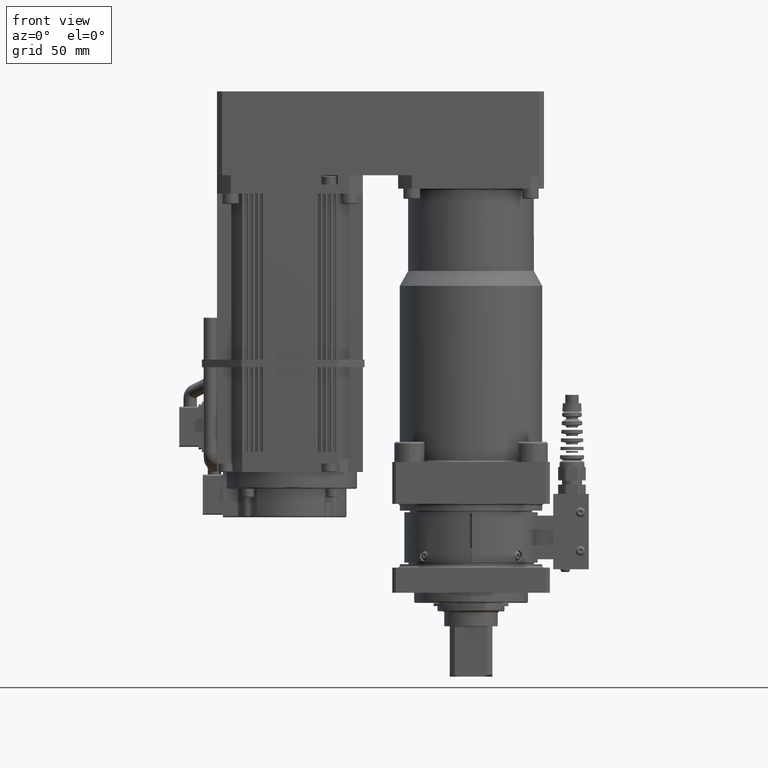
[diagram: clean part render]
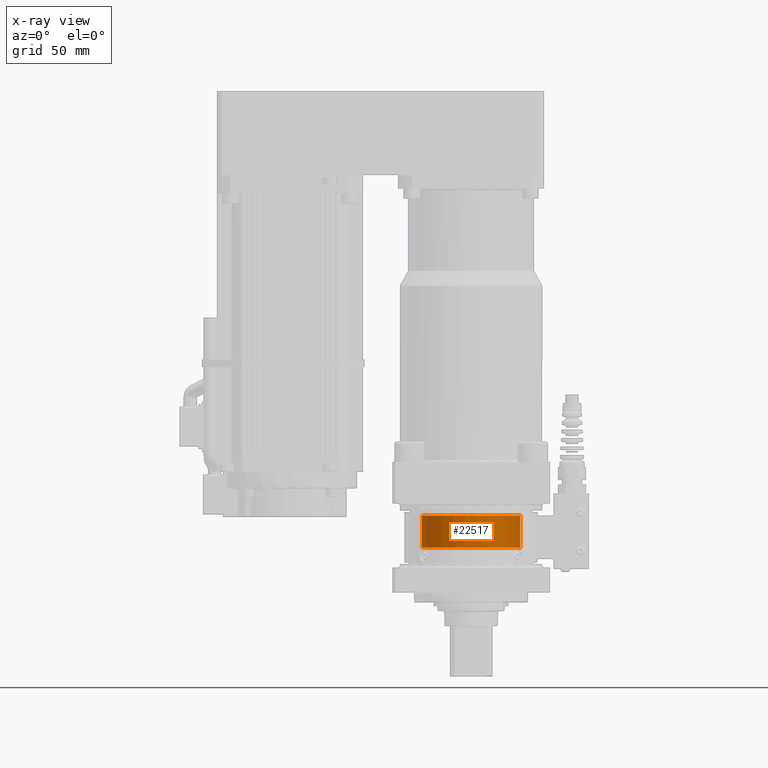
[diagram: x-ray — body ghosted, one internal face saturated and labeled with its STEP entity id]
A machine part, front view, then the same camera in x-ray: the body is ghosted and one INTERNAL B-rep face — a face not visible from any outside direction — is saturated and labeled: STEP entity #22517.
In plain terms, the highlighted cylindrical surface (bore or boss wall) has radius 29.374 mm, axis along (0, 0, -1).
Its self-contained STEP definition (entity closure, byte-faithful):
#3059=LINE('',#37317,#5033);
#5033=VECTOR('',#30406,29.374);
#5461=CYLINDRICAL_SURFACE('',#24571,29.374);
#6552=FACE_OUTER_BOUND('',#7868,.T.);
#7868=EDGE_LOOP('',(#19624,#19625,#19626,#19627,#19628,#19629));
#8854=CIRCLE('',#24569,29.374);
#8855=CIRCLE('',#24570,29.374);
#8856=CIRCLE('',#24572,29.374);
#8857=CIRCLE('',#24573,29.374);
#10776=VERTEX_POINT('',#37308);
#10777=VERTEX_POINT('',#37310);
#10778=VERTEX_POINT('',#37314);
#10779=VERTEX_POINT('',#37315);
#13771=EDGE_CURVE('',#10776,#10777,#8854,.T.);
#13772=EDGE_CURVE('',#10777,#10776,#8855,.T.);
#13773=EDGE_CURVE('',#10778,#10779,#8856,.T.);
#13774=EDGE_CURVE('',#10778,#10777,#3059,.T.);
#13775=EDGE_CURVE('',#10779,#10778,#8857,.T.);
#19624=ORIENTED_EDGE('',*,*,#13773,.F.);
#19625=ORIENTED_EDGE('',*,*,#13774,.T.);
#19626=ORIENTED_EDGE('',*,*,#13771,.F.);
#19627=ORIENTED_EDGE('',*,*,#13772,.F.);
#19628=ORIENTED_EDGE('',*,*,#13774,.F.);
#19629=ORIENTED_EDGE('',*,*,#13775,.F.);
#22517=ADVANCED_FACE('',(#6552),#5461,.T.);
#24569=AXIS2_PLACEMENT_3D('',#37311,#30398,#30399);
#24570=AXIS2_PLACEMENT_3D('',#37312,#30400,#30401);
#24571=AXIS2_PLACEMENT_3D('',#37313,#30402,#30403);
#24572=AXIS2_PLACEMENT_3D('',#37316,#30404,#30405);
#24573=AXIS2_PLACEMENT_3D('',#37318,#30407,#30408);
#30398=DIRECTION('center_axis',(-5.9693332104316E-16,-2.04895557754938E-16,
1.));
#30399=DIRECTION('ref_axis',(0.707106781186548,0.707106781186547,5.66978637549342E-16));
#30400=DIRECTION('center_axis',(-5.9693332104316E-16,-2.04895557754938E-16,
1.));
#30401=DIRECTION('ref_axis',(0.707106781186548,0.707106781186547,5.66978637549342E-16));
#30402=DIRECTION('center_axis',(5.9693332104316E-16,2.04895557754938E-16,
-1.));
#30403=DIRECTION('ref_axis',(-0.707106781186548,-0.707106781186547,-5.66978637549342E-16));
#30404=DIRECTION('center_axis',(5.9693332104316E-16,2.04895557754938E-16,
-1.));
#30405=DIRECTION('ref_axis',(0.707106781186548,0.707106781186547,5.66978637549342E-16));
#30406=DIRECTION('',(-5.9693332104316E-16,-2.04895557754938E-16,1.));
#30407=DIRECTION('center_axis',(5.9693332104316E-16,2.04895557754938E-16,
-1.));
#30408=DIRECTION('ref_axis',(0.707106781186548,0.707106781186547,5.66978637549342E-16));
#37308=CARTESIAN_POINT('',(-67.7705545905736,67.7705545905737,46.));
#37310=CARTESIAN_POINT('',(-26.2294454094263,67.7705545905736,46.));
#37311=CARTESIAN_POINT('Origin',(-47.,47.,46.));
#37312=CARTESIAN_POINT('Origin',(-47.,47.,46.));
#37313=CARTESIAN_POINT('Origin',(-47.,47.,36.5));
#37314=CARTESIAN_POINT('',(-26.2294454094263,67.7705545905736,27.));
#37315=CARTESIAN_POINT('',(-67.7705545905736,67.7705545905737,27.));
#37316=CARTESIAN_POINT('Origin',(-47.,47.,27.));
#37317=CARTESIAN_POINT('',(-26.2294454094263,67.7705545905736,36.5));
#37318=CARTESIAN_POINT('Origin',(-47.,47.,27.));